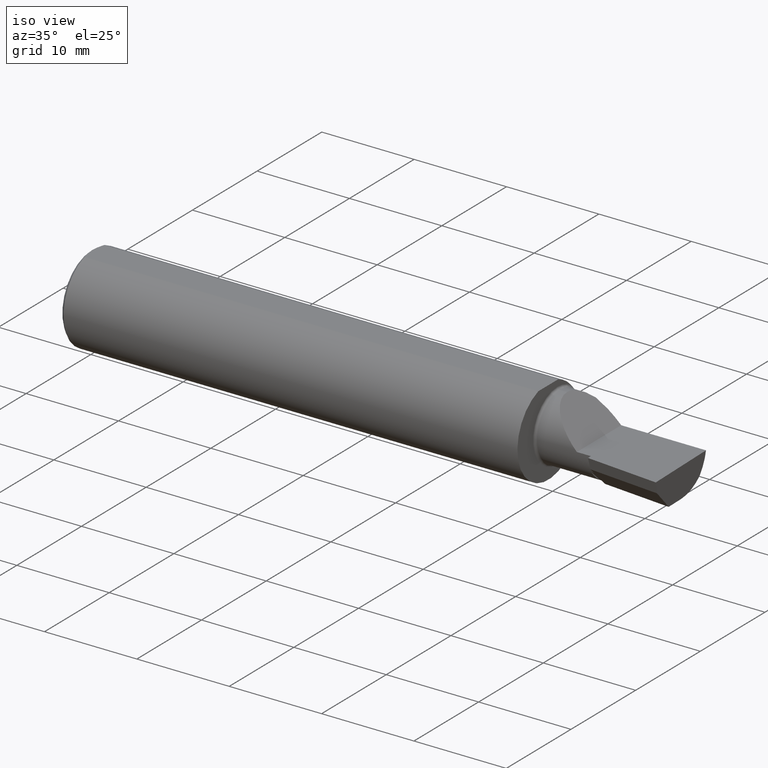
[diagram: clean part render]
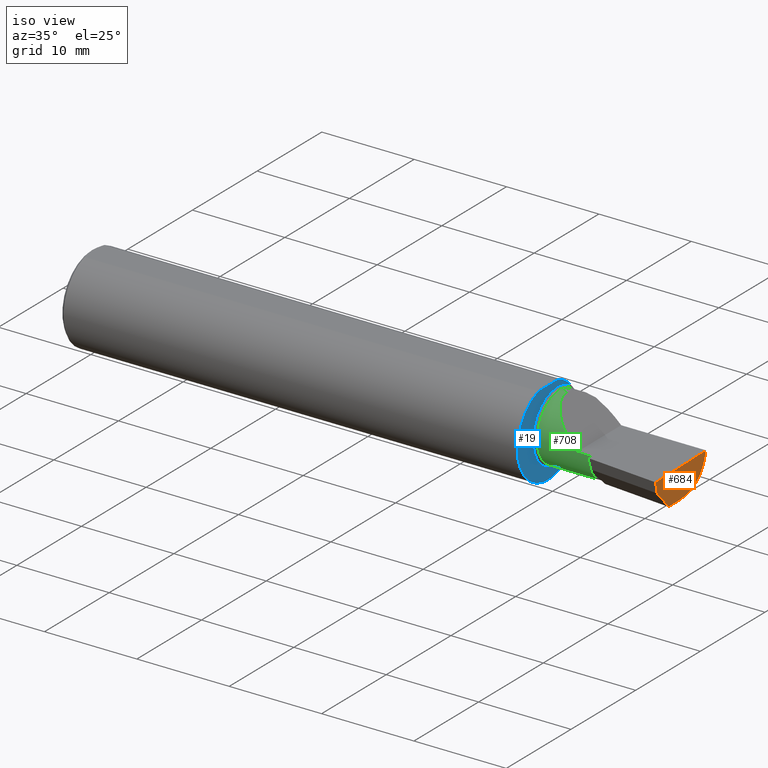
[diagram: same view with three faces highlighted in distinct colors, each labeled with its STEP entity id]
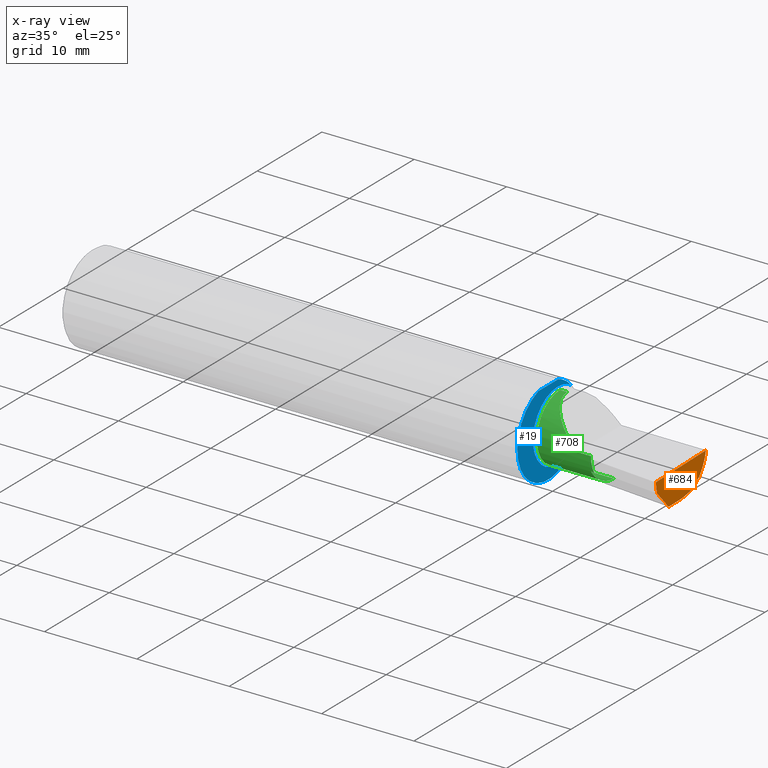
[diagram: x-ray of the same camera — body ghosted, the three highlighted faces saturated]
A machine part, iso view with three faces highlighted in distinct colors.
The next image is the same camera in x-ray (body ghosted, the three faces saturated) — at least one of them is partly hidden behind the body in this view.
Their STEP definitions:

[orange] entity #684 — the highlighted planar face has unit normal (0.9927, 0.0266, -0.1175).
#3 = VECTOR ( 'NONE', #384, 39.37007874015748143 ) ;
#5 = CARTESIAN_POINT ( 'NONE',  ( 2.503195014871369306, -0.2499144076575001427, 1.702373413063153914E-16 ) ) ;
#6 = VERTEX_POINT ( 'NONE', #496 ) ;
#17 = VECTOR ( 'NONE', #690, 39.37007874015748854 ) ;
#22 = EDGE_LOOP ( 'NONE', ( #77, #530, #256, #183, #250, #360 ) ) ;
#40 = CARTESIAN_POINT ( 'NONE',  ( 2.478395815296170479, 0.05682123813157435865, -0.1400500000000000078 ) ) ;
#61 = CARTESIAN_POINT ( 'NONE',  ( 2.487920531740588803, -0.09940957783652945579, -0.09495384310856869181 ) ) ;
#64 = EDGE_CURVE ( 'NONE', #563, #366, #629, .T. ) ;
#73 =( BOUNDED_CURVE ( )  B_SPLINE_CURVE ( 3, ( #141, #372, #533, #314 ),
 .UNSPECIFIED., .F., .T. ) 
 B_SPLINE_CURVE_WITH_KNOTS ( ( 4, 4 ),
 ( 6.060671081087593670, 6.921325714778722826 ),
 .UNSPECIFIED. ) 
 CURVE ( )  GEOMETRIC_REPRESENTATION_ITEM ( )  RATIONAL_B_SPLINE_CURVE ( ( 1.000000000000000000, 0.9392195014330942948, 0.9392195014330942948, 1.000000000000000000 ) ) 
 REPRESENTATION_ITEM ( '' )  );
#77 = ORIENTED_EDGE ( 'NONE', *, *, #585, .T. ) ;
#82 = VERTEX_POINT ( 'NONE', #404 ) ;
#89 = DIRECTION ( 'NONE',  ( 0.9927123040216839778, 0.02659410830637959702, -0.1175373763844856645 ) ) ;
#98 = EDGE_CURVE ( 'NONE', #366, #82, #291, .T. ) ;
#121 = CARTESIAN_POINT ( 'NONE',  ( 2.484210015596427734, 0.1792580844883771285, -0.06324101202936127653 ) ) ;
#123 = LINE ( 'NONE', #5, #400 ) ;
#125 = AXIS2_PLACEMENT_3D ( 'NONE', #604, #89, #644 ) ;
#132 = VERTEX_POINT ( 'NONE', #178 ) ;
#141 = CARTESIAN_POINT ( 'NONE',  ( 2.478380310647189777, 0.05739999999999996494, -0.1400500000000000078 ) ) ;
#157 = EDGE_CURVE ( 'NONE', #6, #563, #123, .T. ) ;
#162 = LINE ( 'NONE', #40, #3 ) ;
#178 = CARTESIAN_POINT ( 'NONE',  ( 2.481306893948618697, 0.1635956445993030917, -0.09130436773856172306 ) ) ;
#181 = CARTESIAN_POINT ( 'NONE',  ( 2.478380310647189777, 0.05739999999999996494, -0.1400500000000000078 ) ) ;
#183 = ORIENTED_EDGE ( 'NONE', *, *, #98, .T. ) ;
#199 = EDGE_CURVE ( 'NONE', #648, #132, #73, .T. ) ;
#216 = CARTESIAN_POINT ( 'NONE',  ( 2.500000000000000444, -0.1306500000000002382, 5.634436486932542518E-16 ) ) ;
#238 = CARTESIAN_POINT ( 'NONE',  ( 2.481306893948618697, 0.1635956445993030917, -0.09130436773856172306 ) ) ;
#250 = ORIENTED_EDGE ( 'NONE', *, *, #348, .T. ) ;
#256 = ORIENTED_EDGE ( 'NONE', *, *, #64, .T. ) ;
#291 = LINE ( 'NONE', #458, #434 ) ;
#299 = CARTESIAN_POINT ( 'NONE',  ( 2.487675818857995935, 0.1873500000000000443, -0.03213820089768496674 ) ) ;
#313 = FACE_OUTER_BOUND ( 'NONE', #22, .T. ) ;
#314 = CARTESIAN_POINT ( 'NONE',  ( 2.481306893948618697, 0.1635956445993030917, -0.09130436773856172306 ) ) ;
#348 = EDGE_CURVE ( 'NONE', #82, #648, #162, .T. ) ;
#360 = ORIENTED_EDGE ( 'NONE', *, *, #199, .T. ) ;
#366 = VERTEX_POINT ( 'NONE', #556 ) ;
#372 = CARTESIAN_POINT ( 'NONE',  ( 2.477269351521856677, 0.09887019258091184204, -0.1400500000000000356 ) ) ;
#384 = DIRECTION ( 'NONE',  ( -0.02677973311238984050, 0.9996413586354002678, -1.761661302186973806E-16 ) ) ;
#400 = VECTOR ( 'NONE', #755, 39.37007874015748854 ) ;
#404 = CARTESIAN_POINT ( 'NONE',  ( 2.480562016066065301, -0.02403930934313731893, -0.1400500000000000078 ) ) ;
#413 =( BOUNDED_CURVE ( )  B_SPLINE_CURVE ( 3, ( #238, #121, #299, #587 ),
 .UNSPECIFIED., .F., .F. ) 
 B_SPLINE_CURVE_WITH_KNOTS ( ( 4, 4 ),
 ( 0.8392337203534694368, 1.348282100702905106 ),
 .UNSPECIFIED. ) 
 CURVE ( )  GEOMETRIC_REPRESENTATION_ITEM ( )  RATIONAL_B_SPLINE_CURVE ( ( 1.000000000000000000, 0.9785221379938656705, 0.9785221379938656705, 1.000000000000000000 ) ) 
 REPRESENTATION_ITEM ( '' )  );
#434 = VECTOR ( 'NONE', #695, 39.37007874015748143 ) ;
#458 = CARTESIAN_POINT ( 'NONE',  ( 2.488122802579768589, -0.07616661604293553656, -0.08798650540469074577 ) ) ;
#496 = CARTESIAN_POINT ( 'NONE',  ( 2.491480989600745932, 0.1873499999999998777, 1.720566076660925670E-16 ) ) ;
#530 = ORIENTED_EDGE ( 'NONE', *, *, #157, .T. ) ;
#533 = CARTESIAN_POINT ( 'NONE',  ( 2.478308009434788239, 0.1365595166907236646, -0.1227499502647107776 ) ) ;
#556 = CARTESIAN_POINT ( 'NONE',  ( 2.493639294701532449, -0.1141996799598987422, -0.04999999999999984318 ) ) ;
#563 = VERTEX_POINT ( 'NONE', #216 ) ;
#585 = EDGE_CURVE ( 'NONE', #132, #6, #413, .T. ) ;
#587 = CARTESIAN_POINT ( 'NONE',  ( 2.491480989600745932, 0.1873499999999998777, 1.720566076660925670E-16 ) ) ;
#604 = CARTESIAN_POINT ( 'NONE',  ( 2.520808634711511953, -0.1301051067234823833, 0.1758715337596207240 ) ) ;
#629 = LINE ( 'NONE', #61, #17 ) ;
#644 = DIRECTION ( 'NONE',  ( -0.1175789623991730093, 0.000000000000000000, -0.9930635365378863710 ) ) ;
#648 = VERTEX_POINT ( 'NONE', #181 ) ;
#684 = ADVANCED_FACE ( 'NONE', ( #313 ), #721, .T. ) ;
#690 = DIRECTION ( 'NONE',  ( -0.1199690778467070312, 0.3102690083707262958, -0.9430485474275737134 ) ) ;
#695 = DIRECTION ( 'NONE',  ( -0.1020886612874964267, 0.7038430390621321919, -0.7029814233678643998 ) ) ;
#721 = PLANE ( 'NONE',  #125 ) ;
#755 = DIRECTION ( 'NONE',  ( 0.02677973311238981968, -0.9996413586354002678, -4.159071407961027197E-18 ) ) ;

[blue] entity #19 — the highlighted planar face has unit normal (-1, 0, -0).
#10 = EDGE_CURVE ( 'NONE', #642, #12, #665, .T. ) ;
#12 = VERTEX_POINT ( 'NONE', #395 ) ;
#19 = ADVANCED_FACE ( 'NONE', ( #438 ), #156, .F. ) ;
#30 = EDGE_CURVE ( 'NONE', #642, #160, #669, .T. ) ;
#78 = DIRECTION ( 'NONE',  ( -1.000000000000000000, -0.000000000000000000, -0.000000000000000000 ) ) ;
#97 = DIRECTION ( 'NONE',  ( -1.000000000000000000, 0.000000000000000000, -0.000000000000000000 ) ) ;
#116 = LINE ( 'NONE', #119, #235 ) ;
#119 = CARTESIAN_POINT ( 'NONE',  ( 1.950000000000000178, 0.2373500000000000332, 0.1773499999999999521 ) ) ;
#127 = CARTESIAN_POINT ( 'NONE',  ( 1.950000000000000178, 0.05739999999999997882, 0.1500500000000000445 ) ) ;
#142 = VERTEX_POINT ( 'NONE', #127 ) ;
#143 = DIRECTION ( 'NONE',  ( 0.000000000000000000, 0.000000000000000000, 1.000000000000000000 ) ) ;
#146 = ORIENTED_EDGE ( 'NONE', *, *, #614, .T. ) ;
#147 = CARTESIAN_POINT ( 'NONE',  ( 1.950000000000000178, 0.1383256097560974507, -0.1263568288047932642 ) ) ;
#153 = CIRCLE ( 'NONE', #576, 0.1500500000000000445 ) ;
#156 = PLANE ( 'NONE',  #654 ) ;
#160 = VERTEX_POINT ( 'NONE', #455 ) ;
#164 = DIRECTION ( 'NONE',  ( -1.000000000000000000, -0.000000000000000000, -0.000000000000000000 ) ) ;
#170 = EDGE_CURVE ( 'NONE', #160, #415, #116, .T. ) ;
#176 = EDGE_LOOP ( 'NONE', ( #248, #425, #146, #624, #492, #412 ) ) ;
#188 = DIRECTION ( 'NONE',  ( 0.000000000000000000, 0.000000000000000000, 1.000000000000000000 ) ) ;
#212 = CIRCLE ( 'NONE', #655, 0.1500500000000000445 ) ;
#221 = CARTESIAN_POINT ( 'NONE',  ( 1.950000000000000178, 0.05739999999999997882, 0.000000000000000000 ) ) ;
#235 = VECTOR ( 'NONE', #584, 39.37007874015748143 ) ;
#248 = ORIENTED_EDGE ( 'NONE', *, *, #10, .T. ) ;
#249 = CARTESIAN_POINT ( 'NONE',  ( 1.950000000000000178, 0.000000000000000000, 0.000000000000000000 ) ) ;
#279 = CARTESIAN_POINT ( 'NONE',  ( 1.950000000000000178, 0.05739999999999997882, 0.000000000000000000 ) ) ;
#281 = EDGE_CURVE ( 'NONE', #415, #651, #307, .T. ) ;
#284 = AXIS2_PLACEMENT_3D ( 'NONE', #327, #432, #686 ) ;
#307 = CIRCLE ( 'NONE', #740, 0.1873499999999999888 ) ;
#327 = CARTESIAN_POINT ( 'NONE',  ( 1.950000000000000178, 0.000000000000000000, 0.000000000000000000 ) ) ;
#380 = DIRECTION ( 'NONE',  ( 0.000000000000000000, 0.000000000000000000, 1.000000000000000000 ) ) ;
#382 = DIRECTION ( 'NONE',  ( 0.000000000000000000, 0.000000000000000000, 1.000000000000000000 ) ) ;
#395 = CARTESIAN_POINT ( 'NONE',  ( 1.950000000000000178, 0.05739999999999999963, -0.1500500000000000445 ) ) ;
#412 = ORIENTED_EDGE ( 'NONE', *, *, #30, .F. ) ;
#415 = VERTEX_POINT ( 'NONE', #494 ) ;
#425 = ORIENTED_EDGE ( 'NONE', *, *, #546, .T. ) ;
#432 = DIRECTION ( 'NONE',  ( -1.000000000000000000, -0.000000000000000000, -0.000000000000000000 ) ) ;
#438 = FACE_OUTER_BOUND ( 'NONE', #176, .T. ) ;
#455 = CARTESIAN_POINT ( 'NONE',  ( 1.950000000000000178, -0.06039039658753697637, 0.1773499999999999799 ) ) ;
#484 = DIRECTION ( 'NONE',  ( -1.000000000000000000, -0.000000000000000000, -0.000000000000000000 ) ) ;
#492 = ORIENTED_EDGE ( 'NONE', *, *, #170, .F. ) ;
#494 = CARTESIAN_POINT ( 'NONE',  ( 1.950000000000000178, 0.06039039658753701106, 0.1773499999999999799 ) ) ;
#498 = AXIS2_PLACEMENT_3D ( 'NONE', #221, #164, #382 ) ;
#546 = EDGE_CURVE ( 'NONE', #12, #142, #153, .T. ) ;
#551 = CARTESIAN_POINT ( 'NONE',  ( 1.950000000000000178, 0.1383256097560974507, 0.1263568288047932642 ) ) ;
#570 = DIRECTION ( 'NONE',  ( -0.000000000000000000, 0.000000000000000000, 1.000000000000000000 ) ) ;
#576 = AXIS2_PLACEMENT_3D ( 'NONE', #279, #752, #380 ) ;
#584 = DIRECTION ( 'NONE',  ( 0.000000000000000000, 1.000000000000000000, -1.438723400918613551E-16 ) ) ;
#612 = CARTESIAN_POINT ( 'NONE',  ( 1.950000000000000178, -0.09265000000000005176, 0.000000000000000000 ) ) ;
#614 = EDGE_CURVE ( 'NONE', #142, #651, #212, .T. ) ;
#624 = ORIENTED_EDGE ( 'NONE', *, *, #281, .F. ) ;
#642 = VERTEX_POINT ( 'NONE', #147 ) ;
#651 = VERTEX_POINT ( 'NONE', #551 ) ;
#654 = AXIS2_PLACEMENT_3D ( 'NONE', #612, #97, #570 ) ;
#655 = AXIS2_PLACEMENT_3D ( 'NONE', #704, #484, #143 ) ;
#665 = CIRCLE ( 'NONE', #498, 0.1500500000000000445 ) ;
#669 = CIRCLE ( 'NONE', #284, 0.1873499999999999888 ) ;
#686 = DIRECTION ( 'NONE',  ( 0.000000000000000000, 0.000000000000000000, 1.000000000000000000 ) ) ;
#704 = CARTESIAN_POINT ( 'NONE',  ( 1.950000000000000178, 0.05739999999999997882, 0.000000000000000000 ) ) ;
#740 = AXIS2_PLACEMENT_3D ( 'NONE', #249, #78, #188 ) ;
#752 = DIRECTION ( 'NONE',  ( -1.000000000000000000, -0.000000000000000000, -0.000000000000000000 ) ) ;

[green] entity #708 — the highlighted cylindrical surface (partial cylindrical patch) has radius 3.5573 mm, axis along (-1, -0, -0).
#11 = CARTESIAN_POINT ( 'NONE',  ( 2.177426863084049202, -0.06375161744379249928, -0.07025872252434531284 ) ) ;
#28 = VERTEX_POINT ( 'NONE', #47 ) ;
#31 = CARTESIAN_POINT ( 'NONE',  ( 8.889029578031509911E-32, -0.08265000000000001512, 5.644462552563044730E-16 ) ) ;
#41 = DIRECTION ( 'NONE',  ( -1.000000000000000000, -0.000000000000000000, -0.000000000000000000 ) ) ;
#42 = VERTEX_POINT ( 'NONE', #753 ) ;
#47 = CARTESIAN_POINT ( 'NONE',  ( 1.989949999999998775, 0.05739999999999997882, 0.1400500000000000078 ) ) ;
#50 = CARTESIAN_POINT ( 'NONE',  ( 2.180141567848909112, -0.03555833050537432483, -0.1073493499420050956 ) ) ;
#53 = VERTEX_POINT ( 'NONE', #262 ) ;
#54 = CARTESIAN_POINT ( 'NONE',  ( 2.187448432732871151, -0.01683441884804644240, -0.1187596472685085724 ) ) ;
#56 = ORIENTED_EDGE ( 'NONE', *, *, #579, .T. ) ;
#59 = CARTESIAN_POINT ( 'NONE',  ( 2.189999999999999947, -0.01748911258856174558, -0.1183453561222312378 ) ) ;
#80 = LINE ( 'NONE', #263, #682 ) ;
#90 = LINE ( 'NONE', #31, #305 ) ;
#106 = ORIENTED_EDGE ( 'NONE', *, *, #697, .F. ) ;
#108 = VERTEX_POINT ( 'NONE', #700 ) ;
#115 = AXIS2_PLACEMENT_3D ( 'NONE', #561, #41, #745 ) ;
#120 = CARTESIAN_POINT ( 'NONE',  ( 2.184805551184139993, -0.01617630990044777867, -0.1191684915675323836 ) ) ;
#145 = EDGE_CURVE ( 'NONE', #591, #304, #703, .T. ) ;
#161 = EDGE_CURVE ( 'NONE', #304, #731, #309, .T. ) ;
#192 = ORIENTED_EDGE ( 'NONE', *, *, #430, .F. ) ;
#193 = CYLINDRICAL_SURFACE ( 'NONE', #526, 0.1400500000000000078 ) ;
#215 = CARTESIAN_POINT ( 'NONE',  ( 2.047960609410351296, -0.08264999999999984859, 0.08203939058964823672 ) ) ;
#230 = EDGE_LOOP ( 'NONE', ( #389, #56, #319, #233, #660, #427, #240, #192, #385, #106 ) ) ;
#233 = ORIENTED_EDGE ( 'NONE', *, *, #145, .T. ) ;
#240 = ORIENTED_EDGE ( 'NONE', *, *, #367, .F. ) ;
#257 =( BOUNDED_CURVE ( )  B_SPLINE_CURVE ( 3, ( #349, #54, #120, #352 ),
 .UNSPECIFIED., .F., .T. ) 
 B_SPLINE_CURVE_WITH_KNOTS ( ( 4, 4 ),
 ( 3.369220829256468708, 3.385816822084442013 ),
 .UNSPECIFIED. ) 
 CURVE ( )  GEOMETRIC_REPRESENTATION_ITEM ( )  RATIONAL_B_SPLINE_CURVE ( ( 1.000000000000000000, 0.9999770478835389165, 0.9999770478835389165, 1.000000000000000000 ) ) 
 REPRESENTATION_ITEM ( '' )  );
#262 = CARTESIAN_POINT ( 'NONE',  ( 1.960000000000000409, 0.05739999999999999963, -0.1400500000000000633 ) ) ;
#263 = CARTESIAN_POINT ( 'NONE',  ( 0.000000000000000000, 0.05739999999999997882, 0.1400500000000000078 ) ) ;
#268 = CARTESIAN_POINT ( 'NONE',  ( 1.989949999999998775, -0.02463939058964791096, 0.1400500000000000356 ) ) ;
#283 = CARTESIAN_POINT ( 'NONE',  ( 2.178560885666600999, -0.05197434262614716166, -0.09056703218288446322 ) ) ;
#285 = VECTOR ( 'NONE', #388, 39.37007874015748143 ) ;
#304 = VERTEX_POINT ( 'NONE', #11 ) ;
#305 = VECTOR ( 'NONE', #566, 39.37007874015748143 ) ;
#309 =( BOUNDED_CURVE ( )  B_SPLINE_CURVE ( 3, ( #346, #406, #354, #577 ),
 .UNSPECIFIED., .F., .T. ) 
 B_SPLINE_CURVE_WITH_KNOTS ( ( 4, 4 ),
 ( 2.888141059890074303, 2.913964477923117968 ),
 .UNSPECIFIED. ) 
 CURVE ( )  GEOMETRIC_REPRESENTATION_ITEM ( )  RATIONAL_B_SPLINE_CURVE ( ( 1.000000000000000000, 0.9999444300287800846, 0.9999444300287800846, 1.000000000000000000 ) ) 
 REPRESENTATION_ITEM ( '' )  );
#319 = ORIENTED_EDGE ( 'NONE', *, *, #489, .T. ) ;
#343 = AXIS2_PLACEMENT_3D ( 'NONE', #601, #353, #583 ) ;
#346 = CARTESIAN_POINT ( 'NONE',  ( 2.177426863084049202, -0.06375161744379249928, -0.07025872252434531284 ) ) ;
#349 = CARTESIAN_POINT ( 'NONE',  ( 2.189999999999999947, -0.01748911258856174558, -0.1183453561222312378 ) ) ;
#352 = CARTESIAN_POINT ( 'NONE',  ( 2.182071537332980427, -0.01551483106074535816, -0.1195718608677767553 ) ) ;
#353 = DIRECTION ( 'NONE',  ( -1.000000000000000000, -0.000000000000000000, -0.000000000000000000 ) ) ;
#354 = CARTESIAN_POINT ( 'NONE',  ( 2.186029688399880211, -0.06252862236813255814, -0.07233658413215687810 ) ) ;
#367 = EDGE_CURVE ( 'NONE', #554, #543, #90, .T. ) ;
#377 = CARTESIAN_POINT ( 'NONE',  ( 2.189999999999999947, 0.05739999999999997882, 0.000000000000000000 ) ) ;
#385 = ORIENTED_EDGE ( 'NONE', *, *, #627, .T. ) ;
#388 = DIRECTION ( 'NONE',  ( -1.000000000000000000, -0.000000000000000000, -0.000000000000000000 ) ) ;
#389 = ORIENTED_EDGE ( 'NONE', *, *, #571, .F. ) ;
#399 = CARTESIAN_POINT ( 'NONE',  ( 2.182071537332980427, -0.01551483106074535816, -0.1195718608677767553 ) ) ;
#406 = CARTESIAN_POINT ( 'NONE',  ( 2.181838409852002059, -0.06314682718525910232, -0.07130160112223313251 ) ) ;
#414 = CIRCLE ( 'NONE', #694, 0.1400500000000000078 ) ;
#427 = ORIENTED_EDGE ( 'NONE', *, *, #599, .T. ) ;
#430 = EDGE_CURVE ( 'NONE', #28, #554, #522, .T. ) ;
#442 = LINE ( 'NONE', #675, #285 ) ;
#488 = DIRECTION ( 'NONE',  ( -1.000000000000000000, -0.000000000000000000, -0.000000000000000000 ) ) ;
#489 = EDGE_CURVE ( 'NONE', #701, #591, #257, .T. ) ;
#505 = CARTESIAN_POINT ( 'NONE',  ( 2.189999999999999947, -0.08265000000000005675, 5.644462552563045716E-16 ) ) ;
#522 =( BOUNDED_CURVE ( )  B_SPLINE_CURVE ( 3, ( #744, #268, #215, #685 ),
 .UNSPECIFIED., .F., .T. ) 
 B_SPLINE_CURVE_WITH_KNOTS ( ( 4, 4 ),
 ( 0.000000000000000000, 1.570796326794894338 ),
 .UNSPECIFIED. ) 
 CURVE ( )  GEOMETRIC_REPRESENTATION_ITEM ( )  RATIONAL_B_SPLINE_CURVE ( ( 1.000000000000000000, 0.8047378541243654926, 0.8047378541243654926, 1.000000000000000000 ) ) 
 REPRESENTATION_ITEM ( '' )  );
#526 = AXIS2_PLACEMENT_3D ( 'NONE', #726, #488, #729 ) ;
#528 = DIRECTION ( 'NONE',  ( -1.000000000000000000, -0.000000000000000000, -0.000000000000000000 ) ) ;
#536 = CIRCLE ( 'NONE', #115, 0.1400500000000000078 ) ;
#541 = DIRECTION ( 'NONE',  ( 0.000000000000000000, 0.000000000000000000, 1.000000000000000000 ) ) ;
#543 = VERTEX_POINT ( 'NONE', #505 ) ;
#544 = DIRECTION ( 'NONE',  ( -1.000000000000000000, -0.000000000000000000, -0.000000000000000000 ) ) ;
#548 = FACE_OUTER_BOUND ( 'NONE', #230, .T. ) ;
#554 = VERTEX_POINT ( 'NONE', #607 ) ;
#561 = CARTESIAN_POINT ( 'NONE',  ( 2.189999999999999947, 0.05739999999999997882, 0.000000000000000000 ) ) ;
#566 = DIRECTION ( 'NONE',  ( 1.000000000000000000, 0.000000000000000000, 0.000000000000000000 ) ) ;
#571 = EDGE_CURVE ( 'NONE', #42, #53, #442, .T. ) ;
#577 = CARTESIAN_POINT ( 'NONE',  ( 2.189999999999999947, -0.06189710605328466175, -0.07336349901218836012 ) ) ;
#579 = EDGE_CURVE ( 'NONE', #42, #701, #536, .T. ) ;
#583 = DIRECTION ( 'NONE',  ( 0.000000000000000000, 0.000000000000000000, 1.000000000000000000 ) ) ;
#591 = VERTEX_POINT ( 'NONE', #658 ) ;
#599 = EDGE_CURVE ( 'NONE', #731, #543, #414, .T. ) ;
#601 = CARTESIAN_POINT ( 'NONE',  ( 1.960000000000000409, 0.05739999999999997882, 0.000000000000000000 ) ) ;
#607 = CARTESIAN_POINT ( 'NONE',  ( 2.129999999999999893, -0.08265000000000014002, 2.290089514405551589E-16 ) ) ;
#627 = EDGE_CURVE ( 'NONE', #28, #108, #80, .T. ) ;
#634 = CARTESIAN_POINT ( 'NONE',  ( 2.177426863084049202, -0.06375161744379249928, -0.07025872252434531284 ) ) ;
#658 = CARTESIAN_POINT ( 'NONE',  ( 2.182071537332980427, -0.01551483106074535816, -0.1195718608677767553 ) ) ;
#660 = ORIENTED_EDGE ( 'NONE', *, *, #161, .T. ) ;
#661 = CARTESIAN_POINT ( 'NONE',  ( 2.189999999999999947, -0.06189710605328466175, -0.07336349901218836012 ) ) ;
#675 = CARTESIAN_POINT ( 'NONE',  ( 0.000000000000000000, 0.05739999999999999963, -0.1400500000000000078 ) ) ;
#682 = VECTOR ( 'NONE', #528, 39.37007874015748143 ) ;
#685 = CARTESIAN_POINT ( 'NONE',  ( 2.129999999999999893, -0.08265000000000014002, 2.290089514405551589E-16 ) ) ;
#694 = AXIS2_PLACEMENT_3D ( 'NONE', #377, #544, #541 ) ;
#697 = EDGE_CURVE ( 'NONE', #53, #108, #712, .T. ) ;
#700 = CARTESIAN_POINT ( 'NONE',  ( 1.960000000000000409, 0.05739999999999997882, 0.1400500000000000633 ) ) ;
#701 = VERTEX_POINT ( 'NONE', #59 ) ;
#703 =( BOUNDED_CURVE ( )  B_SPLINE_CURVE ( 3, ( #399, #50, #283, #634 ),
 .UNSPECIFIED., .F., .T. ) 
 B_SPLINE_CURVE_WITH_KNOTS ( ( 4, 4 ),
 ( 5.259982672357754296, 5.757658434552122451 ),
 .UNSPECIFIED. ) 
 CURVE ( )  GEOMETRIC_REPRESENTATION_ITEM ( )  RATIONAL_B_SPLINE_CURVE ( ( 1.000000000000000000, 0.9794661867971437008, 0.9794661867971437008, 1.000000000000000000 ) ) 
 REPRESENTATION_ITEM ( '' )  );
#708 = ADVANCED_FACE ( 'NONE', ( #548 ), #193, .T. ) ;
#712 = CIRCLE ( 'NONE', #343, 0.1400500000000000356 ) ;
#726 = CARTESIAN_POINT ( 'NONE',  ( 0.000000000000000000, 0.05739999999999997882, 0.000000000000000000 ) ) ;
#729 = DIRECTION ( 'NONE',  ( 0.000000000000000000, 0.000000000000000000, 1.000000000000000000 ) ) ;
#731 = VERTEX_POINT ( 'NONE', #661 ) ;
#744 = CARTESIAN_POINT ( 'NONE',  ( 1.989949999999998775, 0.05739999999999997882, 0.1400500000000000078 ) ) ;
#745 = DIRECTION ( 'NONE',  ( 0.000000000000000000, 0.000000000000000000, 1.000000000000000000 ) ) ;
#753 = CARTESIAN_POINT ( 'NONE',  ( 2.189999999999999947, 0.05739999999999996494, -0.1400500000000000078 ) ) ;